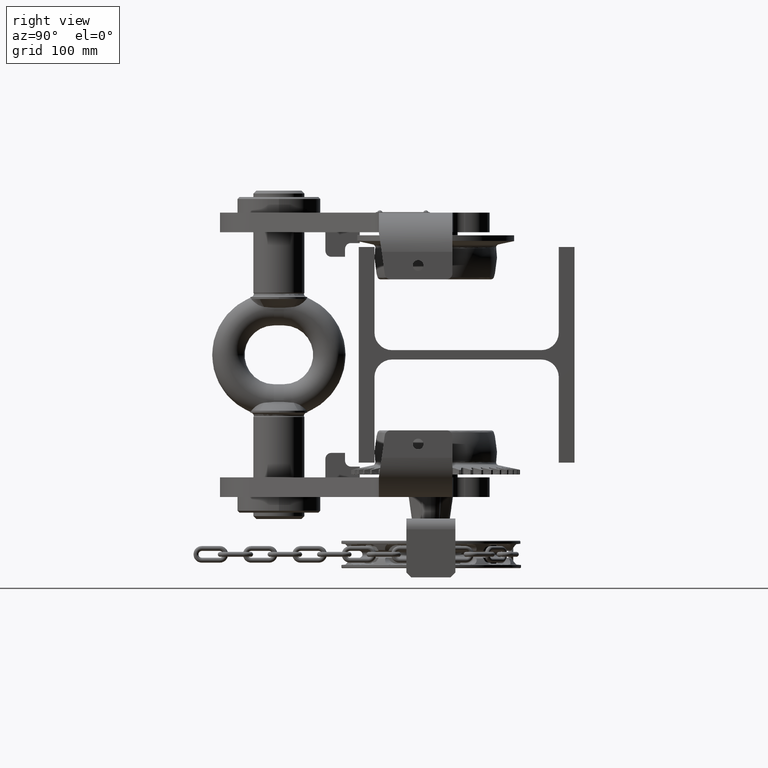
[diagram: clean part render]
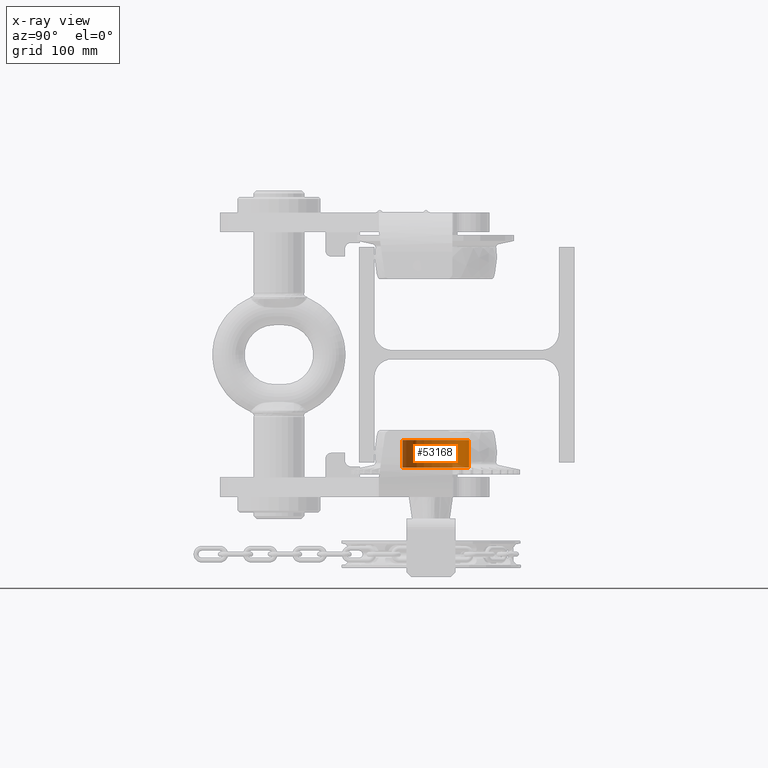
[diagram: x-ray — body ghosted, one internal face saturated and labeled with its STEP entity id]
A machine part, right view, then the same camera in x-ray: the body is ghosted and one INTERNAL B-rep face — a face not visible from any outside direction — is saturated and labeled: STEP entity #53168.
In plain terms, the highlighted cylindrical surface (edge-blend (fillet) strip) has radius 34 mm, axis along (0, 0, -1).
Its self-contained STEP definition (entity closure, byte-faithful):
#1589 = VERTEX_POINT ( 'NONE', #56470 ) ;
#8734 = ORIENTED_EDGE ( 'NONE', *, *, #110107, .F. ) ;
#10739 = ORIENTED_EDGE ( 'NONE', *, *, #47611, .T. ) ;
#13839 = CIRCLE ( 'NONE', #14328, 34.00000000000005700 ) ;
#14328 = AXIS2_PLACEMENT_3D ( 'NONE', #24089, #84794, #15749 ) ;
#15749 = DIRECTION ( 'NONE',  ( 0.0000000000000000000, -1.000000000000000000, -4.081702296416010100E-016 ) ) ;
#24089 = CARTESIAN_POINT ( 'NONE',  ( 104.5000000000032700, -31.49999999999978000, -86.99999999999886300 ) ) ;
#24746 = DIRECTION ( 'NONE',  ( 2.484854187592832900E-015, 3.179572494247397000E-016, -1.000000000000000000 ) ) ;
#34072 = CARTESIAN_POINT ( 'NONE',  ( 104.5000000000032700, -65.49999999999982900, -86.99999999999886300 ) ) ;
#35148 = VECTOR ( 'NONE', #24746, 1000.000000000000000 ) ;
#41589 = DIRECTION ( 'NONE',  ( 2.484854187592832900E-015, 3.179572494247397000E-016, -1.000000000000000000 ) ) ;
#47611 = EDGE_CURVE ( 'NONE', #1589, #100321, #86437, .T. ) ;
#49134 = CARTESIAN_POINT ( 'NONE',  ( 104.5000000000033000, -31.49999999999979000, -132.0687091825541600 ) ) ;
#50176 = LINE ( 'NONE', #122215, #80135 ) ;
#52551 = DIRECTION ( 'NONE',  ( 0.0000000000000000000, -1.000000000000000000, -4.081702296416008100E-016 ) ) ;
#53168 = ADVANCED_FACE ( 'NONE', ( #80795 ), #112275, .F. ) ;
#56470 = CARTESIAN_POINT ( 'NONE',  ( 104.5000000000032700, -65.49999999999985800, -114.9999999999988600 ) ) ;
#60537 = EDGE_CURVE ( 'NONE', #111351, #100321, #74477, .T. ) ;
#67120 = ORIENTED_EDGE ( 'NONE', *, *, #60537, .F. ) ;
#73712 = DIRECTION ( 'NONE',  ( 0.0000000000000000000, -1.000000000000000000, 0.0000000000000000000 ) ) ;
#74477 = LINE ( 'NONE', #92465, #35148 ) ;
#79857 = VERTEX_POINT ( 'NONE', #34072 ) ;
#80135 = VECTOR ( 'NONE', #121322, 1000.000000000000000 ) ;
#80795 = FACE_OUTER_BOUND ( 'NONE', #124893, .T. ) ;
#83295 = CARTESIAN_POINT ( 'NONE',  ( 104.5000000000032300, 2.500000000000224300, -86.99999999999884900 ) ) ;
#84794 = DIRECTION ( 'NONE',  ( 2.484854187592832900E-015, 3.179572494247397000E-016, -1.000000000000000000 ) ) ;
#86437 = CIRCLE ( 'NONE', #104359, 34.00000000000007100 ) ;
#92465 = CARTESIAN_POINT ( 'NONE',  ( 104.5000000000033000, 2.500000000000266000, -132.0687091825541600 ) ) ;
#94610 = ORIENTED_EDGE ( 'NONE', *, *, #115664, .T. ) ;
#100321 = VERTEX_POINT ( 'NONE', #119110 ) ;
#103248 = DIRECTION ( 'NONE',  ( 2.484854187592832900E-015, 3.179572494247397000E-016, -1.000000000000000000 ) ) ;
#104359 = AXIS2_PLACEMENT_3D ( 'NONE', #112901, #41589, #52551 ) ;
#110107 = EDGE_CURVE ( 'NONE', #79857, #111351, #13839, .T. ) ;
#111351 = VERTEX_POINT ( 'NONE', #83295 ) ;
#112275 = CYLINDRICAL_SURFACE ( 'NONE', #113000, 34.00000000000005700 ) ;
#112901 = CARTESIAN_POINT ( 'NONE',  ( 104.5000000000032700, -31.49999999999979000, -114.9999999999988500 ) ) ;
#113000 = AXIS2_PLACEMENT_3D ( 'NONE', #49134, #103248, #73712 ) ;
#115664 = EDGE_CURVE ( 'NONE', #79857, #1589, #50176, .T. ) ;
#119110 = CARTESIAN_POINT ( 'NONE',  ( 104.5000000000032300, 2.500000000000224300, -114.9999999999988300 ) ) ;
#121322 = DIRECTION ( 'NONE',  ( 2.484854187592832900E-015, 3.179572494247397000E-016, -1.000000000000000000 ) ) ;
#122215 = CARTESIAN_POINT ( 'NONE',  ( 104.5000000000033000, -65.49999999999984400, -132.0687091825541600 ) ) ;
#124893 = EDGE_LOOP ( 'NONE', ( #67120, #8734, #94610, #10739 ) ) ;